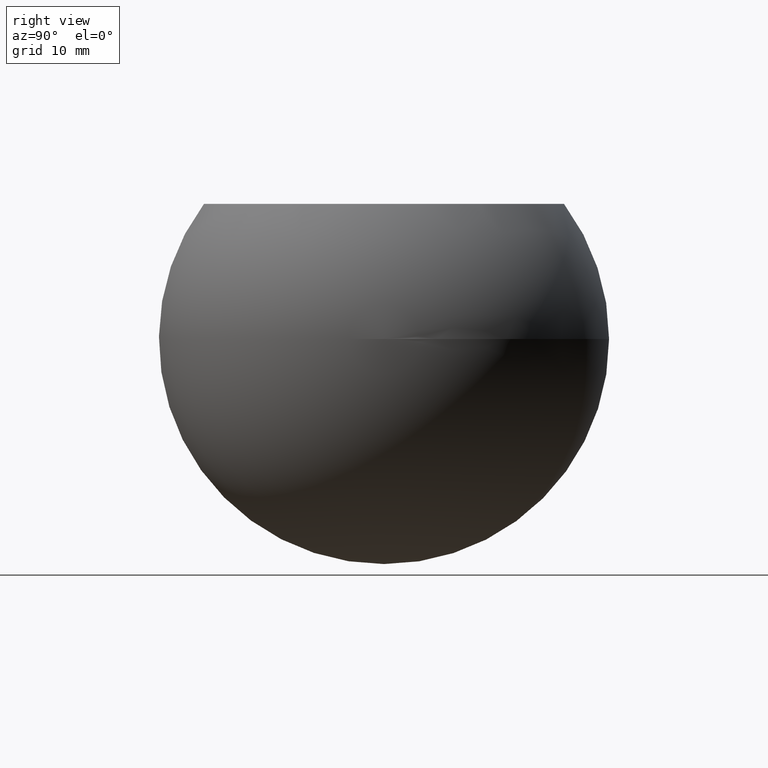
[diagram: clean part render]
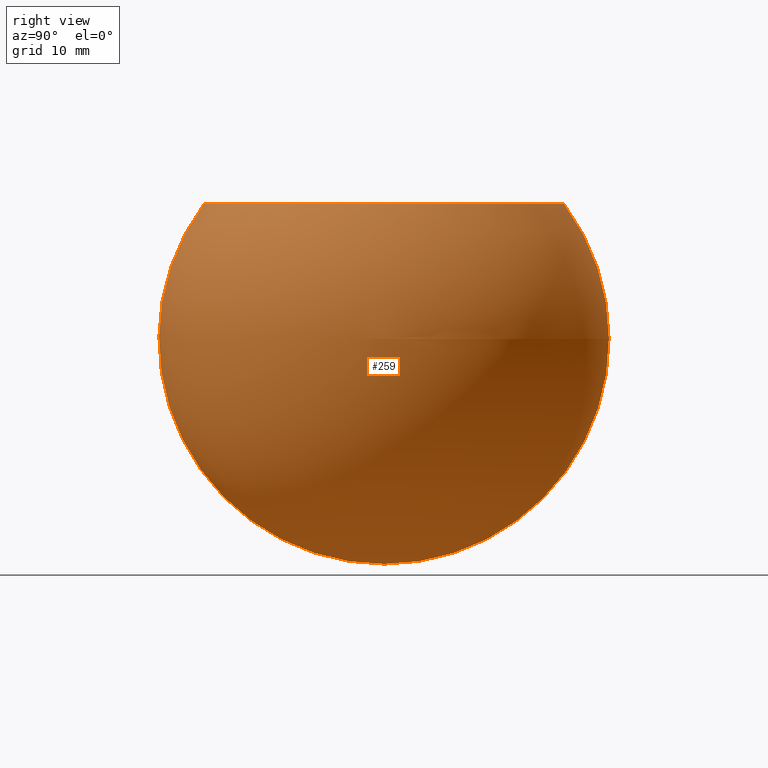
[diagram: same view with one face highlighted and labeled with its STEP entity id]
A machine part, right view. The second image highlights one B-rep face of the part: STEP entity #259.
In plain terms, the highlighted spherical surface has radius 27.5 mm.
Its self-contained STEP definition (entity closure, byte-faithful):
#259 = ADVANCED_FACE ( 'NONE', ( #5461 ), #8408, .T. ) ;
#262 = CARTESIAN_POINT ( 'NONE',  ( 0.0000000000000000000, 0.0000000000000000000, 0.0000000000000000000 ) ) ;
#397 = DIRECTION ( 'NONE',  ( 1.000000000000000000, -0.0000000000000000000, 0.0000000000000000000 ) ) ;
#631 = AXIS2_PLACEMENT_3D ( 'NONE', #3909, #10504, #4917 ) ;
#653 = AXIS2_PLACEMENT_3D ( 'NONE', #9305, #6363, #5414 ) ;
#846 = VERTEX_POINT ( 'NONE', #4821 ) ;
#2477 = CARTESIAN_POINT ( 'NONE',  ( 0.0000000000000000000, 21.99999999999999300, 16.50000000000000700 ) ) ;
#3089 = DIRECTION ( 'NONE',  ( 0.0000000000000000000, 1.000000000000000000, -2.114042506676481100E-016 ) ) ;
#3100 = VERTEX_POINT ( 'NONE', #7228 ) ;
#3776 = EDGE_CURVE ( 'NONE', #4696, #3100, #5566, .T. ) ;
#3909 = CARTESIAN_POINT ( 'NONE',  ( 0.0000000000000000000, 4.250118982893685300E-015, 16.50000000000001100 ) ) ;
#4314 = ORIENTED_EDGE ( 'NONE', *, *, #3776, .F. ) ;
#4696 = VERTEX_POINT ( 'NONE', #2477 ) ;
#4821 = CARTESIAN_POINT ( 'NONE',  ( 2.694222958124175600E-015, -21.99999999999998600, 16.50000000000001400 ) ) ;
#4917 = DIRECTION ( 'NONE',  ( 0.0000000000000000000, 1.000000000000000000, -1.577021341797098100E-016 ) ) ;
#5380 = AXIS2_PLACEMENT_3D ( 'NONE', #6613, #8484, #9268 ) ;
#5414 = DIRECTION ( 'NONE',  ( 0.0000000000000000000, 0.0000000000000000000, 1.000000000000000000 ) ) ;
#5461 = FACE_OUTER_BOUND ( 'NONE', #7048, .T. ) ;
#5566 = CIRCLE ( 'NONE', #653, 27.50000000000000000 ) ;
#6276 = CIRCLE ( 'NONE', #631, 21.99999999999998900 ) ;
#6363 = DIRECTION ( 'NONE',  ( -1.000000000000000000, 0.0000000000000000000, 0.0000000000000000000 ) ) ;
#6613 = CARTESIAN_POINT ( 'NONE',  ( 0.0000000000000000000, 0.0000000000000000000, 0.0000000000000000000 ) ) ;
#7048 = EDGE_LOOP ( 'NONE', ( #8436, #7126, #4314 ) ) ;
#7126 = ORIENTED_EDGE ( 'NONE', *, *, #9978, .T. ) ;
#7228 = CARTESIAN_POINT ( 'NONE',  ( 0.0000000000000000000, -4.129727544532711700E-015, -27.50000000000000000 ) ) ;
#7729 = EDGE_CURVE ( 'NONE', #4696, #846, #6276, .T. ) ;
#8408 = SPHERICAL_SURFACE ( 'NONE', #9385, 27.50000000000000000 ) ;
#8436 = ORIENTED_EDGE ( 'NONE', *, *, #7729, .T. ) ;
#8484 = DIRECTION ( 'NONE',  ( 1.000000000000000000, 1.224646799147353200E-016, -2.588955389062799600E-032 ) ) ;
#9268 = DIRECTION ( 'NONE',  ( -1.224646799147353200E-016, 1.000000000000000000, 0.0000000000000000000 ) ) ;
#9305 = CARTESIAN_POINT ( 'NONE',  ( 0.0000000000000000000, 0.0000000000000000000, 0.0000000000000000000 ) ) ;
#9385 = AXIS2_PLACEMENT_3D ( 'NONE', #262, #397, #3089 ) ;
#9978 = EDGE_CURVE ( 'NONE', #846, #3100, #10469, .T. ) ;
#10469 = CIRCLE ( 'NONE', #5380, 27.50000000000000000 ) ;
#10504 = DIRECTION ( 'NONE',  ( -0.0000000000000000000, -2.114042506676481100E-016, -1.000000000000000000 ) ) ;